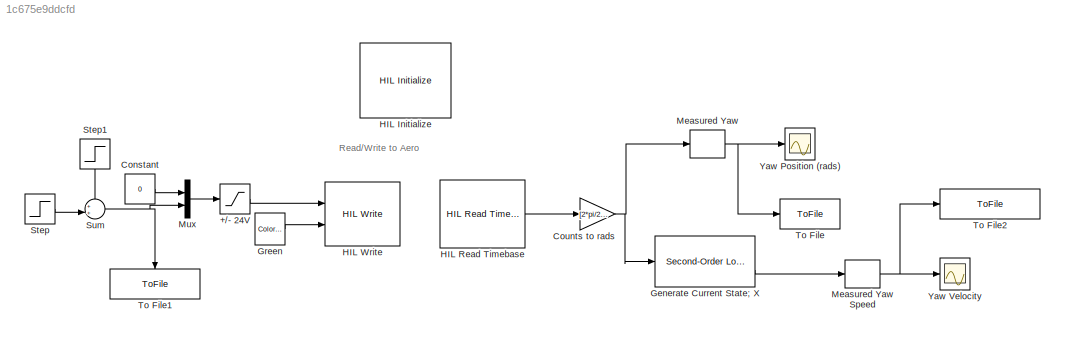
MODEL slx_1c675e9ddcfd
KIND model
CONFIG AbsTol = auto
CONFIG EnableMultiTasking = on
CONFIG FixedStep = 0.002
CONFIG MaxStep = auto
CONFIG MinStep = auto
CONFIG PreLoadFcn = quanser_aero_lqr
CONFIG RelTol = 1e-3
CONFIG SampleTimeConstraint = Unconstrained
CONFIG SolverName = ode1
CONFIG StartTime = 0.0
CONFIG StopTime = 10
BLOCK [Saturate] +//- 24V
  LowerLimit = -24
  UpperLimit = 24
BLOCK [Constant] Constant
  Value = 0
BLOCK [Gain] Counts to rads
  Gain = [2*pi/2048 2*pi/4096]
BLOCK [Reference] Generate Current State; X  REF=quarc_library/Continuous/Second-Order
Low-Pass Filter
  Ports = [1, 2]
  SourceBlock = quarc_library/Continuous/Second-Order\nLow-Pass Filter
  SourceProductName = QUARC Targets
  SourceType = Second-Order Low-Pass Filter
BLOCK [Reference] Green  REF=quarc_library/Sources/Signals/Color Constant
  Ports = [0, 1]
  SourceBlock = quarc_library/Sources/Signals/Color Constant
  SourceProductName = QUARC Targets
  SourceType = Color Constant
BLOCK [Reference] HIL Initialize  REF=quarc_library/Data Acquisition/Generic/Configuration/HIL Initialize
  AttributesFormatString = %<object_name> (%<board_type>-%<board_number>)
  Ports = []
  Priority = -99
  SourceBlock = quarc_library/Data Acquisition/Generic/Configuration/HIL Initialize
  SourceProductName = QUARC Targets
  SourceType = HIL Initialize
  UserDataPersistent = on
BLOCK [Reference] HIL Read Timebase  REF=quarc_library/Data Acquisition/Generic/Timebases/HIL Read
Timebase
  AttributesFormatString = (%<object_name>)
  Ports = [0, 3]
  SourceBlock = quarc_library/Data Acquisition/Generic/Timebases/HIL Read\nTimebase
  SourceProductName = QUARC Targets
  SourceType = HIL Read Timebase
  UserDataPersistent = on
BLOCK [Reference] HIL Write  REF=quarc_library/Data Acquisition/Generic/Immediate I//O/HIL Write
  AttributesFormatString = (%<object_name>)
  Ports = [2]
  SourceBlock = quarc_library/Data Acquisition/Generic/Immediate I//O/HIL Write
  SourceProductName = QUARC Targets
  SourceType = HIL Write
  UserDataPersistent = on
BLOCK [Selector] Measured Yaw
  IndexOptions = Index vector (dialog)
  Indices = [2]
  InputPortWidth = 2
  OutputSizes = 1
  Ports = [1, 1]
BLOCK [Selector] Measured Yaw Speed
  IndexOptions = Index vector (dialog)
  Indices = [2]
  InputPortWidth = 2
  OutputSizes = 1
  Ports = [1, 1]
BLOCK [Mux] Mux
  DisplayOption = bar
  Inputs = 2
  Ports = [2, 1]
BLOCK [Step] Step
  After = 20
  SampleTime = 0
BLOCK [Step] Step1
  After = -20
  NameLocation = left
  SampleTime = 0
  Time = 2
BLOCK [Sum] Sum
  Inputs = ++|
  Ports = [2, 1]
BLOCK [ToFile] To File
  Filename = yaw.mat
  MatrixName = yaw
  Ports = [1]
BLOCK [ToFile] To File1
  Filename = input.mat
  MatrixName = input
  NameLocation = left
  Ports = [1]
BLOCK [ToFile] To File2
  Filename = yaw_speed.mat
  MatrixName = yaw_speed
  Ports = [1]
BLOCK [Scope] Yaw Position (rads)
  Floating = off
  NumInputPorts = 1
  Ports = [1]
  ScopeSpecificationString = Simulink.scopes.TimeScopeBlockCfg('CurrentConfiguration', extmgr.ConfigurationSet(extmgr.Configuration('Core','General UI',true),extmgr.Configuration('Core','Source UI',true),extmgr.Configuration('Sources','WiredSimulink',true,'DataLoggingVariableName','ScopeData4','DataLoggingMaxPoints','10000','DataLoggingSaveFormat','Array','DataLoggingDecimation','1','DataLoggingDecimateData',true),extmgr.Conf...<+1705ch>
BLOCK [Scope] Yaw Velocity
  Floating = off
  NumInputPorts = 1
  Ports = [1]
  ScopeSpecificationString = Simulink.scopes.TimeScopeBlockCfg('CurrentConfiguration', extmgr.ConfigurationSet(extmgr.Configuration('Core','General UI',true),extmgr.Configuration('Core','Source UI',true),extmgr.Configuration('Sources','WiredSimulink',true,'DataLoggingVariableName','ScopeData2'),extmgr.Configuration('Visuals','Time Domain',true,'SerializedDisplays',{struct('MinYLimReal','-0.15809','MaxYLimReal','1.04534','YLab...<+1415ch>
ANNOTATION (root): Read/Write to Aero
LINE +//- 24V:1 -> HIL Write:1
LINE Constant:1 -> Mux:1
NET Counts to rads:1 -> Generate Current State; X:1, Measured Yaw:1
LINE Generate Current State; X:2 -> Measured Yaw Speed:1
LINE Green:1 -> HIL Write:2
LINE HIL Read Timebase:2 -> Counts to rads:1
NET Measured Yaw Speed:1 -> To File2:1, Yaw Velocity:1
NET Measured Yaw:1 -> To File:1, Yaw Position (rads):1
LINE Mux:1 -> +//- 24V:1
LINE Step1:1 -> Sum:1
LINE Step:1 -> Sum:2
NET Sum:1 -> Mux:2, To File1:1
note: NET lines group one-source signal fan-out (src -> all destinations, sorted); 1:1 wires keep LINE
